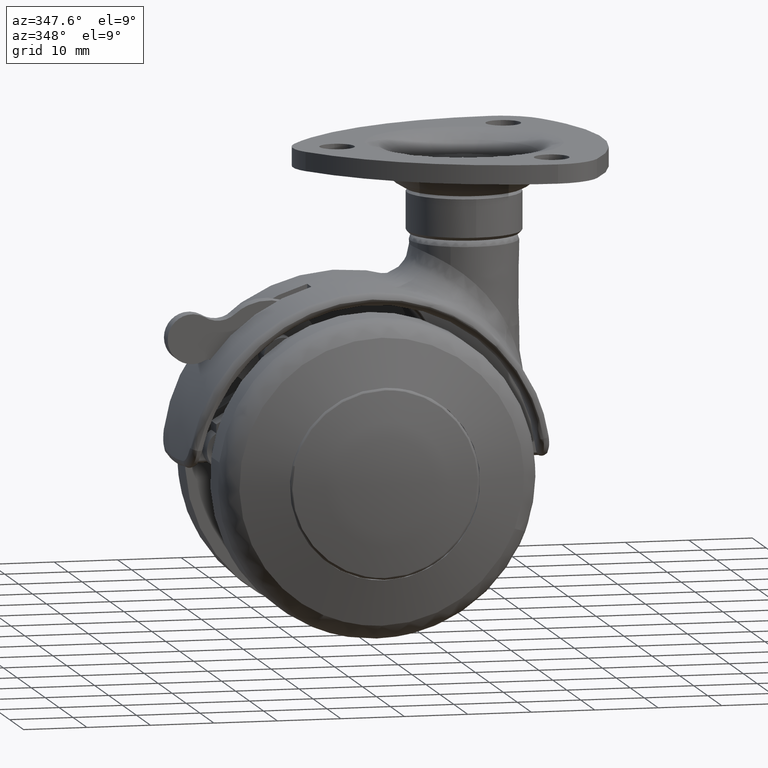
[diagram: clean part render]
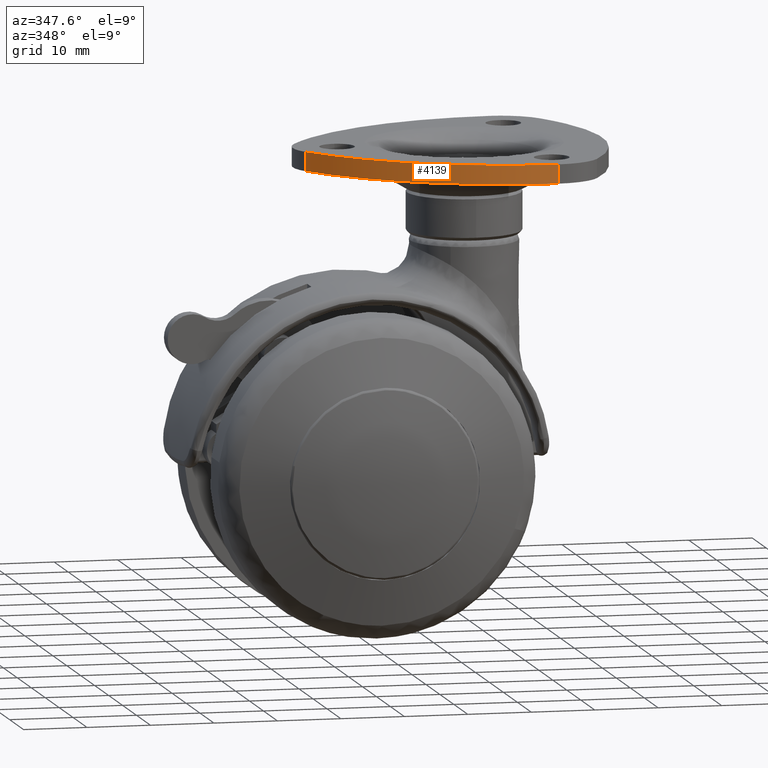
[diagram: same view with one face highlighted and labeled with its STEP entity id]
A machine part, auxiliary view. The second image highlights one B-rep face of the part: STEP entity #4139.
In plain terms, the highlighted face is a freeform B-spline surface patch.
Its self-contained STEP definition (entity closure, byte-faithful):
#3861=CARTESIAN_POINT('',(26.418750644178200,-24.454069574342601,49.500000000000000));
#3862=VERTEX_POINT('',#3861);
#3923=CARTESIAN_POINT('',(-8.887220635689880,-4.070158708862274,49.500000000000000));
#3924=VERTEX_POINT('',#3923);
#3938=CARTESIAN_POINT('',(-8.887220635689880,-4.070158708862274,49.500000000000000));
#3939=CARTESIAN_POINT('',(3.018656293069331,-24.216398990965541,49.499999999999993));
#3940=CARTESIAN_POINT('',(26.418750644178200,-24.454069574342590,49.500000000000000));
#3948=(BOUNDED_CURVE()B_SPLINE_CURVE(2,(#3938,#3939,#3940),.UNSPECIFIED.,.F.,.U.)CURVE()GEOMETRIC_REPRESENTATION_ITEM()QUASI_UNIFORM_CURVE()RATIONAL_B_SPLINE_CURVE((1.0,0.871058890659117,1.0))REPRESENTATION_ITEM(''));
#3949=EDGE_CURVE('',#3924,#3862,#3948,.T.);
#4078=CARTESIAN_POINT('',(-8.887220635689880,-4.070158708862274,46.500000000000000));
#4079=VERTEX_POINT('',#4078);
#4093=CARTESIAN_POINT('',(-8.887220635689880,-4.070158708862274,46.500000000000000));
#4094=CARTESIAN_POINT('',(-8.887220635689880,-4.070158708862274,49.500000000000000));
#4095=QUASI_UNIFORM_CURVE('',1,(#4093,#4094),.UNSPECIFIED.,.F.,.U.);
#4096=EDGE_CURVE('',#4079,#3924,#4095,.T.);
#4101=CARTESIAN_POINT('',(27.623840626663430,-24.448811332722901,46.424999999999990));
#4102=CARTESIAN_POINT('',(27.623840626663430,-24.448811332722901,49.576875000000008));
#4103=CARTESIAN_POINT('',(2.041547110914741,-24.931942718402063,46.424999999999976));
#4104=CARTESIAN_POINT('',(2.041547110914741,-24.931942718402063,49.576875000000001));
#4105=CARTESIAN_POINT('',(-9.879986597790712,-2.292062164522251,46.424999999999997));
#4106=CARTESIAN_POINT('',(-9.879986597790712,-2.292062164522251,49.576875000000022));
#4114=(BOUNDED_SURFACE()B_SPLINE_SURFACE(1,2,((#4101,#4103,#4105),(#4102,#4104,#4106)),.UNSPECIFIED.,.F.,.F.,.U.)B_SPLINE_SURFACE_WITH_KNOTS((2,2),(3,3),(0.0,3.151875000000022),(0.0,47.060577482530391),.UNSPECIFIED.)GEOMETRIC_REPRESENTATION_ITEM()RATIONAL_B_SPLINE_SURFACE(((1.0,0.847667282004006,0.991681811353411),(1.0,0.847667282004006,0.991681811353411)))REPRESENTATION_ITEM('')SURFACE());
#4115=ORIENTED_EDGE('',*,*,#3949,.F.);
#4116=ORIENTED_EDGE('',*,*,#4096,.F.);
#4117=CARTESIAN_POINT('',(26.418750644178200,-24.454069574342601,46.500000000000000));
#4118=VERTEX_POINT('',#4117);
#4119=CARTESIAN_POINT('',(-8.887220635689880,-4.070158708862274,46.500000000000000));
#4120=CARTESIAN_POINT('',(3.018656293069331,-24.216398990965541,46.499999999999993));
#4121=CARTESIAN_POINT('',(26.418750644178200,-24.454069574342590,46.500000000000000));
#4129=(BOUNDED_CURVE()B_SPLINE_CURVE(2,(#4119,#4120,#4121),.UNSPECIFIED.,.F.,.U.)CURVE()GEOMETRIC_REPRESENTATION_ITEM()QUASI_UNIFORM_CURVE()RATIONAL_B_SPLINE_CURVE((1.0,0.871058890659117,1.0))REPRESENTATION_ITEM(''));
#4130=EDGE_CURVE('',#4079,#4118,#4129,.T.);
#4131=ORIENTED_EDGE('',*,*,#4130,.T.);
#4132=CARTESIAN_POINT('',(26.418750644178200,-24.454069574342601,46.500000000000000));
#4133=CARTESIAN_POINT('',(26.418750644178200,-24.454069574342601,49.500000000000000));
#4134=QUASI_UNIFORM_CURVE('',1,(#4132,#4133),.UNSPECIFIED.,.F.,.U.);
#4135=EDGE_CURVE('',#4118,#3862,#4134,.T.);
#4136=ORIENTED_EDGE('',*,*,#4135,.T.);
#4137=EDGE_LOOP('',(#4115,#4116,#4131,#4136));
#4138=FACE_OUTER_BOUND('',#4137,.T.);
#4139=ADVANCED_FACE('',(#4138),#4114,.T.);